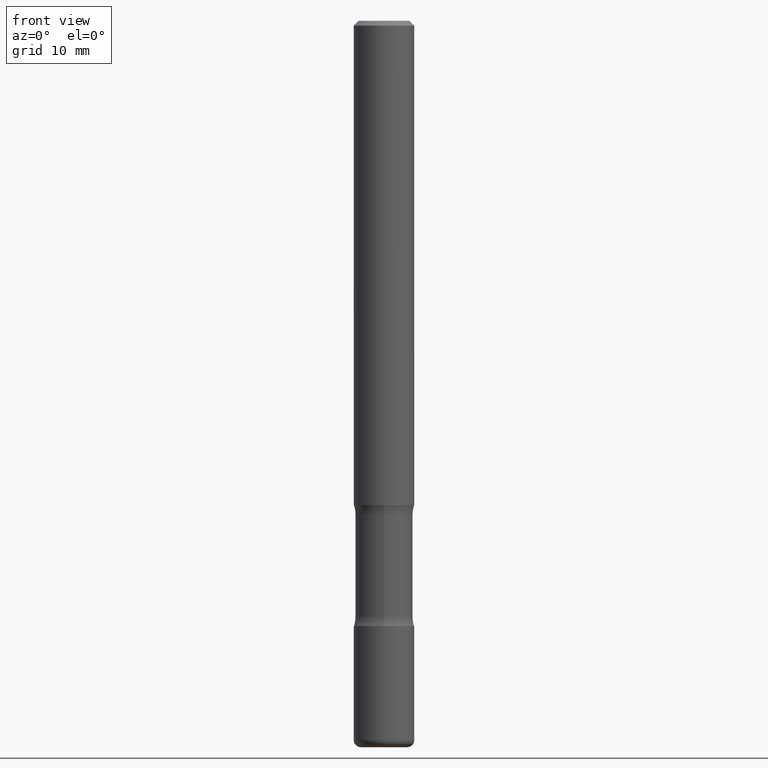
[diagram: clean part render]
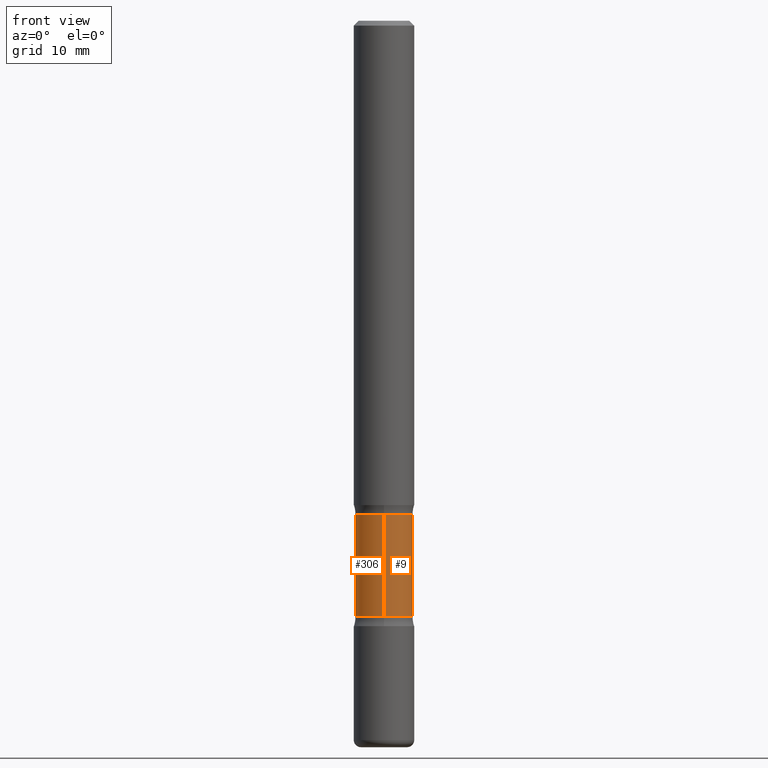
[diagram: same view with one multi-face feature highlighted, each face labeled with its STEP entity id]
A machine part, front view. The highlighted faces form ONE feature: a constant-radius fillet chain: 2 tangent blend faces with common blend radius 3.0162 mm. The faces share edges in the B-rep.
Their STEP definitions:
[1] entity #306 (Cylinder):
#2 = VECTOR ( 'NONE', #69, 39.37007874015748143 ) ;
#18 = DIRECTION ( 'NONE',  ( 6.982962677686265133E-15, 1.000000000000000000, -4.601007147224022844E-15 ) ) ;
#27 = VERTEX_POINT ( 'NONE', #461 ) ;
#69 = DIRECTION ( 'NONE',  ( 2.543540764811263793E-29, -3.351036712181296563E-15, -1.000000000000000000 ) ) ;
#91 = ORIENTED_EDGE ( 'NONE', *, *, #289, .F. ) ;
#94 = AXIS2_PLACEMENT_3D ( 'NONE', #368, #447, #363 ) ;
#111 = CARTESIAN_POINT ( 'NONE',  ( 8.292268179753179304E-16, 0.1187499999999896000, -3.000000000000000444 ) ) ;
#126 = EDGE_LOOP ( 'NONE', ( #91, #338, #470, #352 ) ) ;
#127 = CIRCLE ( 'NONE', #236, 0.1187499999999999806 ) ;
#138 = AXIS2_PLACEMENT_3D ( 'NONE', #297, #160, #391 ) ;
#149 = CARTESIAN_POINT ( 'NONE',  ( 8.292268179752933771E-16, 0.1187499999999928058, -2.039031237489990378 ) ) ;
#159 = EDGE_CURVE ( 'NONE', #343, #225, #340, .T. ) ;
#160 = DIRECTION ( 'NONE',  ( 2.543540764811263793E-29, -3.351036712181296563E-15, -1.000000000000000000 ) ) ;
#193 = CARTESIAN_POINT ( 'NONE',  ( -8.146841372352953582E-16, -0.1187500000000103889, -2.999999999999999112 ) ) ;
#215 = VECTOR ( 'NONE', #362, 39.37007874015748143 ) ;
#221 = CYLINDRICAL_SURFACE ( 'NONE', #138, 0.1187499999999999944 ) ;
#225 = VERTEX_POINT ( 'NONE', #149 ) ;
#231 = EDGE_CURVE ( 'NONE', #225, #488, #555, .T. ) ;
#236 = AXIS2_PLACEMENT_3D ( 'NONE', #483, #399, #18 ) ;
#247 = CARTESIAN_POINT ( 'NONE',  ( 8.292268179753040267E-16, 0.1187499999999913763, -2.460968762510010510 ) ) ;
#266 = EDGE_CURVE ( 'NONE', #27, #488, #127, .T. ) ;
#289 = EDGE_CURVE ( 'NONE', #343, #27, #394, .T. ) ;
#297 = CARTESIAN_POINT ( 'NONE',  ( 7.385442397868472267E-29, -1.040422170319851125E-14, -2.999999999999999556 ) ) ;
#306 = ADVANCED_FACE ( 'NONE', ( #527 ), #221, .T. ) ;
#338 = ORIENTED_EDGE ( 'NONE', *, *, #159, .T. ) ;
#340 = CIRCLE ( 'NONE', #94, 0.1187499999999999944 ) ;
#343 = VERTEX_POINT ( 'NONE', #541 ) ;
#352 = ORIENTED_EDGE ( 'NONE', *, *, #266, .F. ) ;
#362 = DIRECTION ( 'NONE',  ( 2.543540764811263793E-29, -3.351036712181296563E-15, -1.000000000000000000 ) ) ;
#363 = DIRECTION ( 'NONE',  ( 6.982962677686265133E-15, 1.000000000000000000, -2.300503573612011422E-15 ) ) ;
#368 = CARTESIAN_POINT ( 'NONE',  ( 4.941179176714029352E-29, -7.183980100768040122E-15, -2.039031237489990378 ) ) ;
#391 = DIRECTION ( 'NONE',  ( 6.982962677686265133E-15, 1.000000000000000000, -4.601007147224022844E-15 ) ) ;
#394 = LINE ( 'NONE', #193, #215 ) ;
#399 = DIRECTION ( 'NONE',  ( 2.543540764811263793E-29, -3.351036712181296563E-15, -1.000000000000000000 ) ) ;
#447 = DIRECTION ( 'NONE',  ( 2.543540764811263793E-29, -3.351036712181296563E-15, -1.000000000000000000 ) ) ;
#461 = CARTESIAN_POINT ( 'NONE',  ( -8.361231934783443908E-16, -0.1187500000000085848, -2.460968762510009622 ) ) ;
#470 = ORIENTED_EDGE ( 'NONE', *, *, #231, .T. ) ;
#483 = CARTESIAN_POINT ( 'NONE',  ( 6.014394471806022296E-29, -8.597908237357040299E-15, -2.460968762510010066 ) ) ;
#488 = VERTEX_POINT ( 'NONE', #247 ) ;
#527 = FACE_OUTER_BOUND ( 'NONE', #126, .T. ) ;
#541 = CARTESIAN_POINT ( 'NONE',  ( -8.361231934783569139E-16, -0.1187500000000071831, -2.039031237489989934 ) ) ;
#555 = LINE ( 'NONE', #111, #2 ) ;
[2] entity #9 (Cylinder):
#2 = VECTOR ( 'NONE', #69, 39.37007874015748143 ) ;
#9 = ADVANCED_FACE ( 'NONE', ( #50 ), #171, .T. ) ;
#27 = VERTEX_POINT ( 'NONE', #461 ) ;
#44 = CIRCLE ( 'NONE', #335, 0.1187499999999999806 ) ;
#50 = FACE_OUTER_BOUND ( 'NONE', #359, .T. ) ;
#63 = ORIENTED_EDGE ( 'NONE', *, *, #317, .T. ) ;
#69 = DIRECTION ( 'NONE',  ( 2.543540764811263793E-29, -3.351036712181296563E-15, -1.000000000000000000 ) ) ;
#81 = CARTESIAN_POINT ( 'NONE',  ( 7.385442397868472267E-29, -1.040422170319851125E-14, -2.999999999999999556 ) ) ;
#111 = CARTESIAN_POINT ( 'NONE',  ( 8.292268179753179304E-16, 0.1187499999999896000, -3.000000000000000444 ) ) ;
#115 = DIRECTION ( 'NONE',  ( 2.543540764811263793E-29, -3.351036712181296563E-15, -1.000000000000000000 ) ) ;
#130 = CARTESIAN_POINT ( 'NONE',  ( 4.941179176714029352E-29, -7.183980100768040122E-15, -2.039031237489990378 ) ) ;
#142 = ORIENTED_EDGE ( 'NONE', *, *, #468, .F. ) ;
#149 = CARTESIAN_POINT ( 'NONE',  ( 8.292268179752933771E-16, 0.1187499999999928058, -2.039031237489990378 ) ) ;
#161 = CARTESIAN_POINT ( 'NONE',  ( 6.014394471806022296E-29, -8.597908237357040299E-15, -2.460968762510010066 ) ) ;
#171 = CYLINDRICAL_SURFACE ( 'NONE', #325, 0.1187499999999999944 ) ;
#193 = CARTESIAN_POINT ( 'NONE',  ( -8.146841372352953582E-16, -0.1187500000000103889, -2.999999999999999112 ) ) ;
#200 = ORIENTED_EDGE ( 'NONE', *, *, #231, .F. ) ;
#215 = VECTOR ( 'NONE', #362, 39.37007874015748143 ) ;
#216 = DIRECTION ( 'NONE',  ( 6.982962677686265133E-15, 1.000000000000000000, -4.601007147224022844E-15 ) ) ;
#225 = VERTEX_POINT ( 'NONE', #149 ) ;
#231 = EDGE_CURVE ( 'NONE', #225, #488, #555, .T. ) ;
#241 = CIRCLE ( 'NONE', #246, 0.1187499999999999944 ) ;
#246 = AXIS2_PLACEMENT_3D ( 'NONE', #130, #257, #381 ) ;
#247 = CARTESIAN_POINT ( 'NONE',  ( 8.292268179753040267E-16, 0.1187499999999913763, -2.460968762510010510 ) ) ;
#257 = DIRECTION ( 'NONE',  ( 2.543540764811263793E-29, -3.351036712181296563E-15, -1.000000000000000000 ) ) ;
#289 = EDGE_CURVE ( 'NONE', #343, #27, #394, .T. ) ;
#317 = EDGE_CURVE ( 'NONE', #225, #343, #241, .T. ) ;
#325 = AXIS2_PLACEMENT_3D ( 'NONE', #81, #429, #390 ) ;
#335 = AXIS2_PLACEMENT_3D ( 'NONE', #161, #115, #216 ) ;
#343 = VERTEX_POINT ( 'NONE', #541 ) ;
#359 = EDGE_LOOP ( 'NONE', ( #63, #415, #142, #200 ) ) ;
#362 = DIRECTION ( 'NONE',  ( 2.543540764811263793E-29, -3.351036712181296563E-15, -1.000000000000000000 ) ) ;
#381 = DIRECTION ( 'NONE',  ( 6.982962677686265133E-15, 1.000000000000000000, -2.300503573612011422E-15 ) ) ;
#390 = DIRECTION ( 'NONE',  ( 6.982962677686265133E-15, 1.000000000000000000, -4.601007147224022844E-15 ) ) ;
#394 = LINE ( 'NONE', #193, #215 ) ;
#415 = ORIENTED_EDGE ( 'NONE', *, *, #289, .T. ) ;
#429 = DIRECTION ( 'NONE',  ( 2.543540764811263793E-29, -3.351036712181296563E-15, -1.000000000000000000 ) ) ;
#461 = CARTESIAN_POINT ( 'NONE',  ( -8.361231934783443908E-16, -0.1187500000000085848, -2.460968762510009622 ) ) ;
#468 = EDGE_CURVE ( 'NONE', #488, #27, #44, .T. ) ;
#488 = VERTEX_POINT ( 'NONE', #247 ) ;
#541 = CARTESIAN_POINT ( 'NONE',  ( -8.361231934783569139E-16, -0.1187500000000071831, -2.039031237489989934 ) ) ;
#555 = LINE ( 'NONE', #111, #2 ) ;